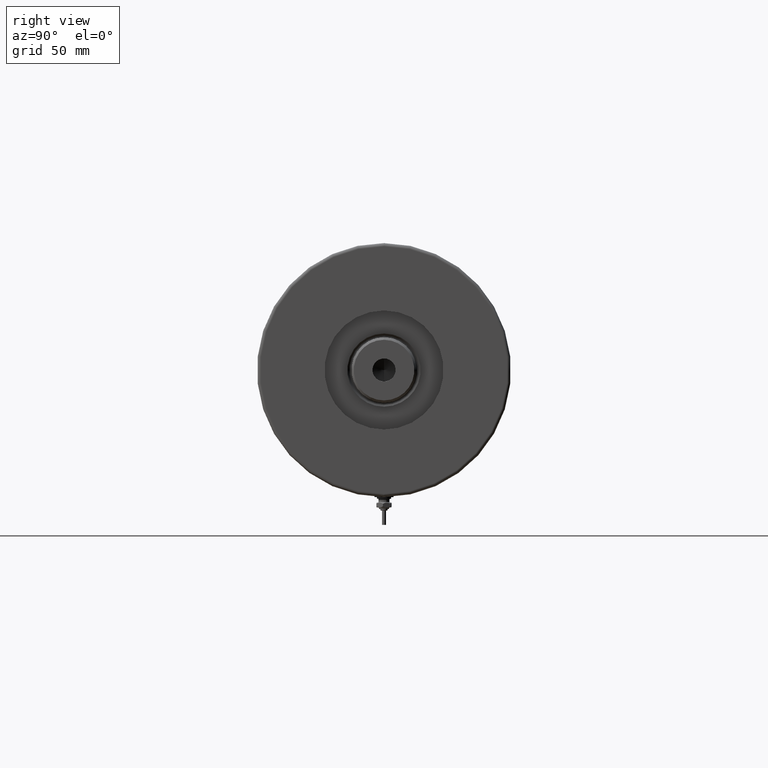
[diagram: clean part render]
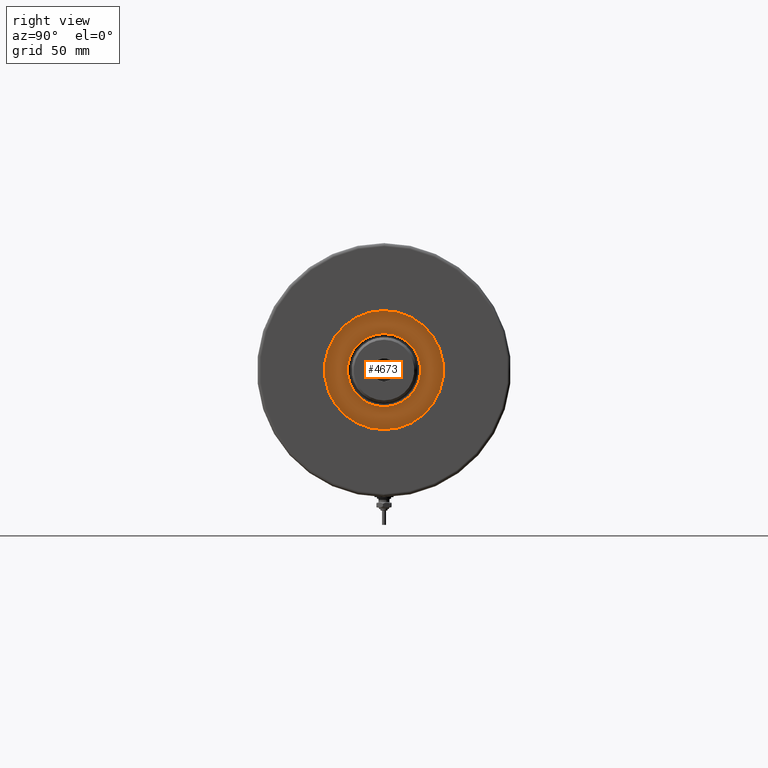
[diagram: same view with one face highlighted and labeled with its STEP entity id]
A machine part, right view. The second image highlights one B-rep face of the part: STEP entity #4673.
In plain terms, the highlighted planar face has unit normal (1, 0, -0).
Its self-contained STEP definition (entity closure, byte-faithful):
#49 = EDGE_CURVE ( 'NONE', #956, #961, #1619, .T. ) ;
#130 = CIRCLE ( 'NONE', #3736, 23.05000000000002913 ) ;
#217 = PLANE ( 'NONE',  #5794 ) ;
#308 = CIRCLE ( 'NONE', #4933, 23.05000000000002913 ) ;
#472 = DIRECTION ( 'NONE',  ( 1.000000000000000000, 0.000000000000000000, 0.000000000000000000 ) ) ;
#534 = DIRECTION ( 'NONE',  ( -0.000000000000000000, -0.000000000000000000, -1.000000000000000000 ) ) ;
#559 = DIRECTION ( 'NONE',  ( 1.000000000000000000, 0.000000000000000000, 0.000000000000000000 ) ) ;
#764 = CARTESIAN_POINT ( 'NONE',  ( 0.000000000000000000, 0.000000000000000000, 59.89999999999999147 ) ) ;
#853 = CARTESIAN_POINT ( 'NONE',  ( 0.000000000000000000, 0.000000000000000000, 59.89999999999999147 ) ) ;
#956 = VERTEX_POINT ( 'NONE', #2302 ) ;
#961 = VERTEX_POINT ( 'NONE', #5163 ) ;
#1176 = DIRECTION ( 'NONE',  ( 0.000000000000000000, 0.000000000000000000, 1.000000000000000000 ) ) ;
#1619 = CIRCLE ( 'NONE', #6049, 37.50000000000000711 ) ;
#1748 = AXIS2_PLACEMENT_3D ( 'NONE', #764, #2849, #5084 ) ;
#1832 = EDGE_LOOP ( 'NONE', ( #4759, #6367 ) ) ;
#2080 = EDGE_CURVE ( 'NONE', #3900, #6388, #308, .T. ) ;
#2153 = CARTESIAN_POINT ( 'NONE',  ( 0.000000000000000000, 0.000000000000000000, 59.89999999999999147 ) ) ;
#2302 = CARTESIAN_POINT ( 'NONE',  ( 37.50000000000000711, 4.592425496802575156E-15, 59.89999999999999147 ) ) ;
#2540 = DIRECTION ( 'NONE',  ( 1.000000000000000000, 0.000000000000000000, 0.000000000000000000 ) ) ;
#2577 = CARTESIAN_POINT ( 'NONE',  ( 0.000000000000000000, 0.000000000000000000, 59.89999999999999147 ) ) ;
#2849 = DIRECTION ( 'NONE',  ( 0.000000000000000000, 0.000000000000000000, 1.000000000000000000 ) ) ;
#2870 = EDGE_CURVE ( 'NONE', #961, #956, #4018, .T. ) ;
#2973 = ORIENTED_EDGE ( 'NONE', *, *, #2870, .T. ) ;
#3736 = AXIS2_PLACEMENT_3D ( 'NONE', #853, #5118, #2540 ) ;
#3790 = ORIENTED_EDGE ( 'NONE', *, *, #49, .T. ) ;
#3900 = VERTEX_POINT ( 'NONE', #4799 ) ;
#4018 = CIRCLE ( 'NONE', #1748, 37.50000000000000711 ) ;
#4353 = CARTESIAN_POINT ( 'NONE',  ( 0.000000000000000000, 0.000000000000000000, 59.89999999999999147 ) ) ;
#4463 = EDGE_LOOP ( 'NONE', ( #2973, #3790 ) ) ;
#4540 = DIRECTION ( 'NONE',  ( 0.000000000000000000, 0.000000000000000000, 1.000000000000000000 ) ) ;
#4622 = FACE_BOUND ( 'NONE', #1832, .T. ) ;
#4673 = ADVANCED_FACE ( 'NONE', ( #4622, #4713 ), #217, .T. ) ;
#4713 = FACE_OUTER_BOUND ( 'NONE', #4463, .T. ) ;
#4759 = ORIENTED_EDGE ( 'NONE', *, *, #2080, .T. ) ;
#4799 = CARTESIAN_POINT ( 'NONE',  ( 23.05000000000002913, 0.000000000000000000, 59.89999999999999147 ) ) ;
#4923 = EDGE_CURVE ( 'NONE', #6388, #3900, #130, .T. ) ;
#4933 = AXIS2_PLACEMENT_3D ( 'NONE', #4353, #534, #472 ) ;
#5084 = DIRECTION ( 'NONE',  ( 1.000000000000000000, 0.000000000000000000, 0.000000000000000000 ) ) ;
#5118 = DIRECTION ( 'NONE',  ( -0.000000000000000000, -0.000000000000000000, -1.000000000000000000 ) ) ;
#5163 = CARTESIAN_POINT ( 'NONE',  ( -37.50000000000000711, 0.000000000000000000, 59.89999999999999147 ) ) ;
#5544 = CARTESIAN_POINT ( 'NONE',  ( -23.05000000000002913, 2.822810872034651791E-15, 59.89999999999999147 ) ) ;
#5794 = AXIS2_PLACEMENT_3D ( 'NONE', #2153, #1176, #6179 ) ;
#6049 = AXIS2_PLACEMENT_3D ( 'NONE', #2577, #4540, #559 ) ;
#6179 = DIRECTION ( 'NONE',  ( 1.000000000000000000, 0.000000000000000000, -0.000000000000000000 ) ) ;
#6367 = ORIENTED_EDGE ( 'NONE', *, *, #4923, .T. ) ;
#6388 = VERTEX_POINT ( 'NONE', #5544 ) ;